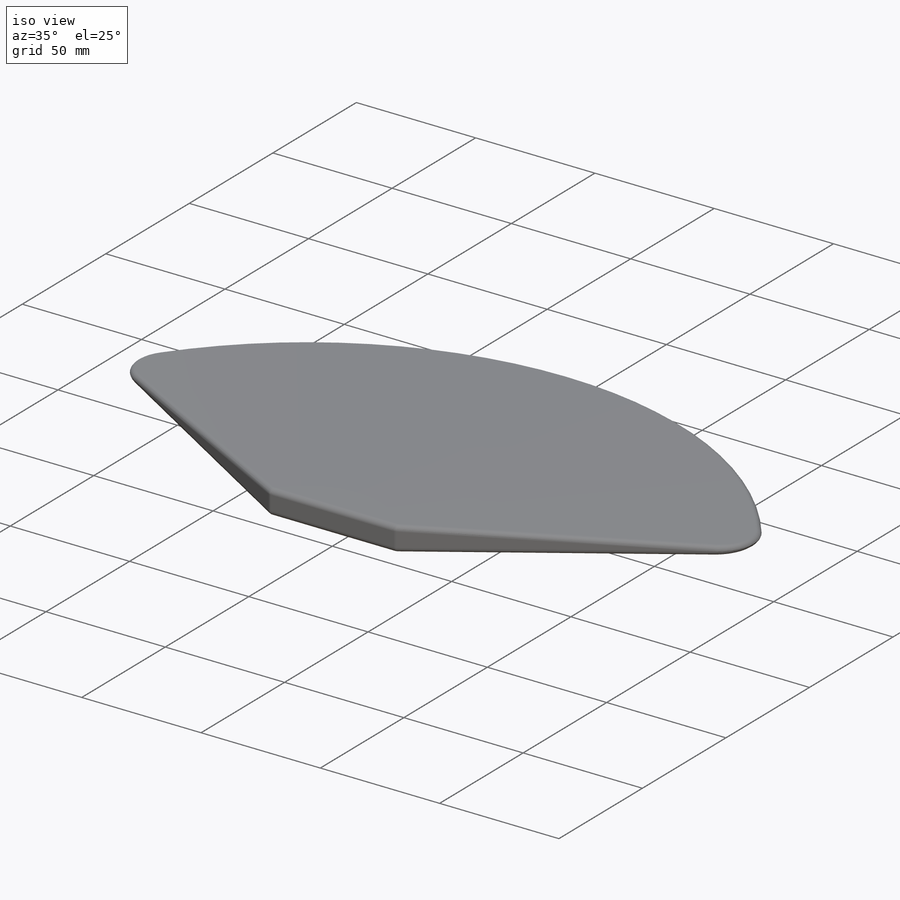
[diagram: iso view]
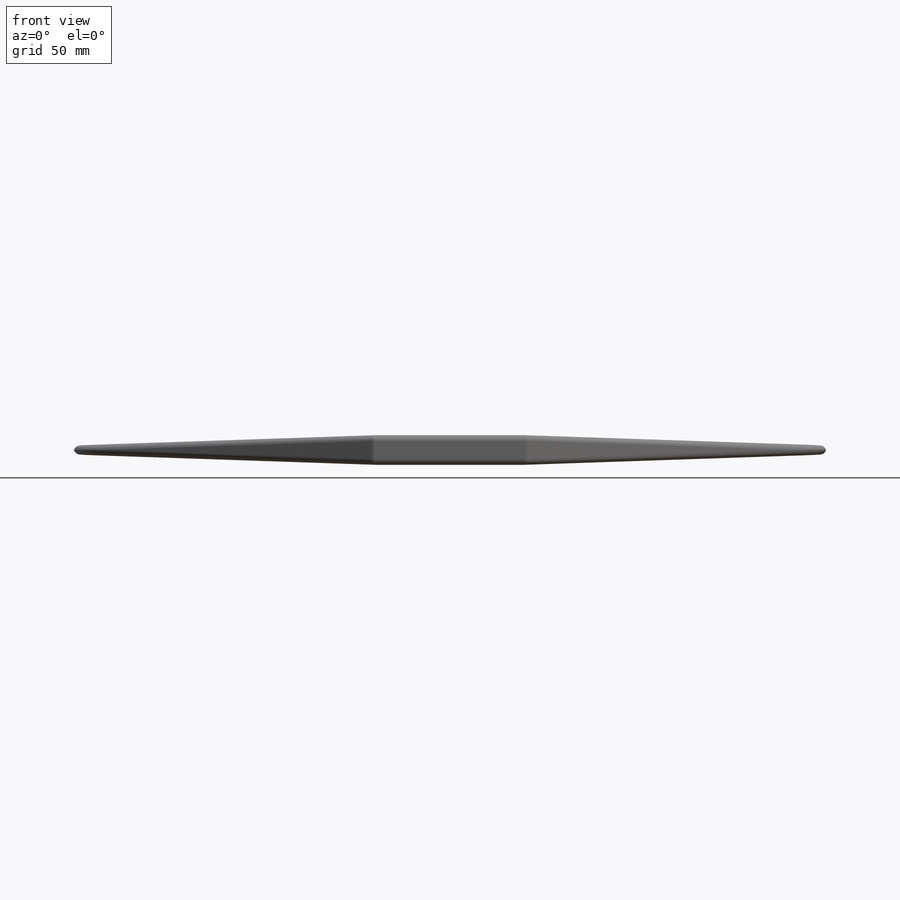
[diagram: front view]
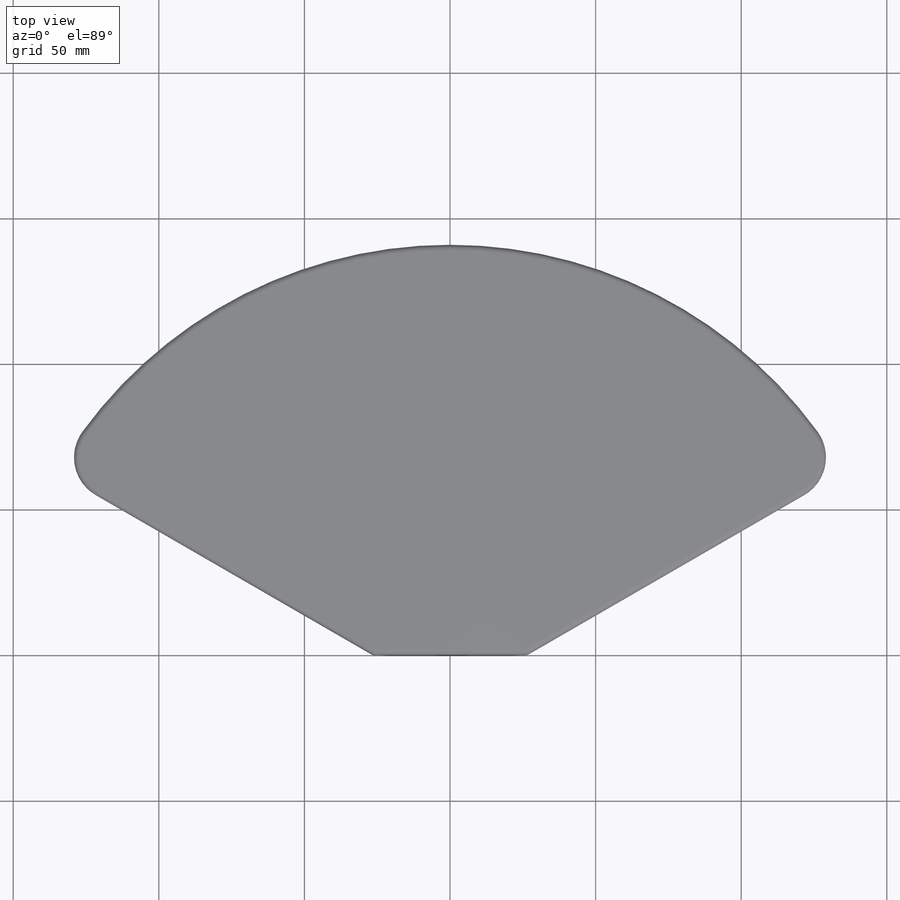
[diagram: top view]
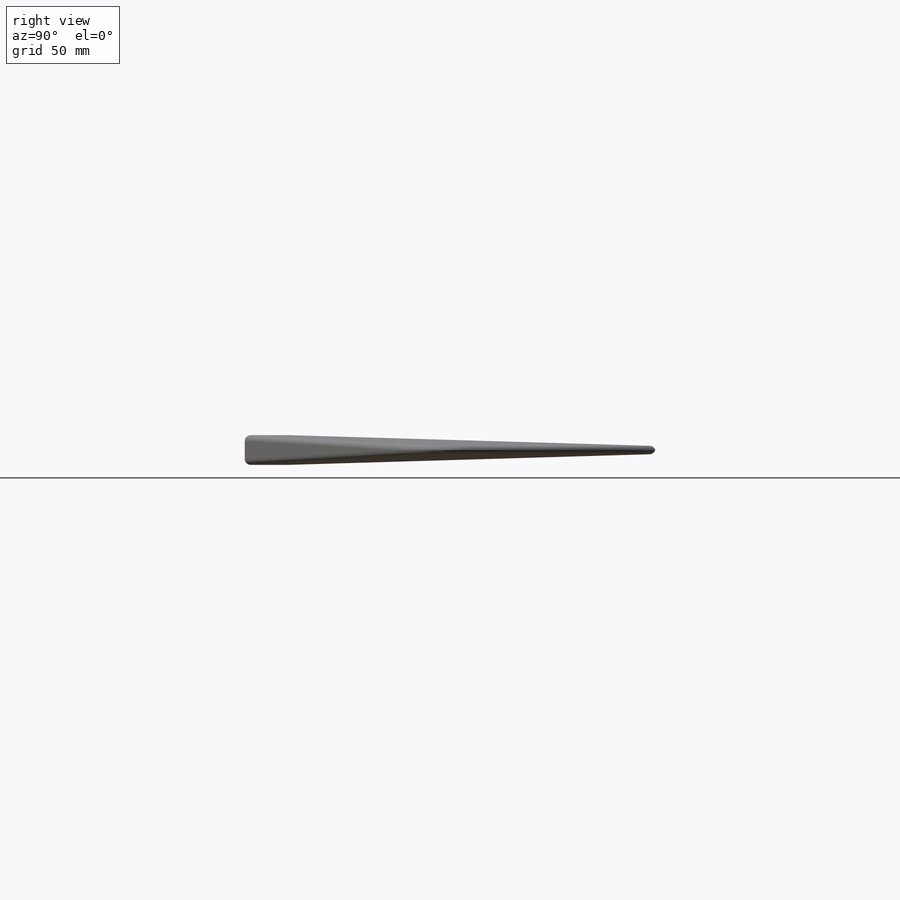
[diagram: right view]
SOLIDWORKS PART (.sldprt)
format: sldprt  version: not decoded by parser v0  size: 353,280 bytes
history: native  units: mm
features: sketch x3, material x1, extrude x1, sweep x1, cut_extrude x1, fillet x1 (+11 scaffold rows collapsed)
feature tree (19):
  scaffold x11  (default folders/planes/origin — collapsed)
  material  "Material <not specified>"
  sketch  "Sketch4"  dims[c1.D1=52.9mm c1.D2=141.0mm c1.D3=~87.766115mm c2.D3=120.0deg]
  extrude  "Boss-Extrude2"  Depth=5.1mm
  sketch  "Sketch5"  dims[D1=2.8mm]
  sweep  "Cut-Sweep2"
  sketch  "Sketch6"  dims[D1=15.0mm]
  cut_extrude  "Cut-Extrude1"  [1 undecoded]
  fillet  "Fillet5"  Radius=2mm
decode coverage: 5 of 7 modeling features carry decoded parameters
note: ~ marks probable driven/reference dimensions
note: 1 parameter value undecoded
note: suppression state not decoded; provenance and decode notes live in map.json
